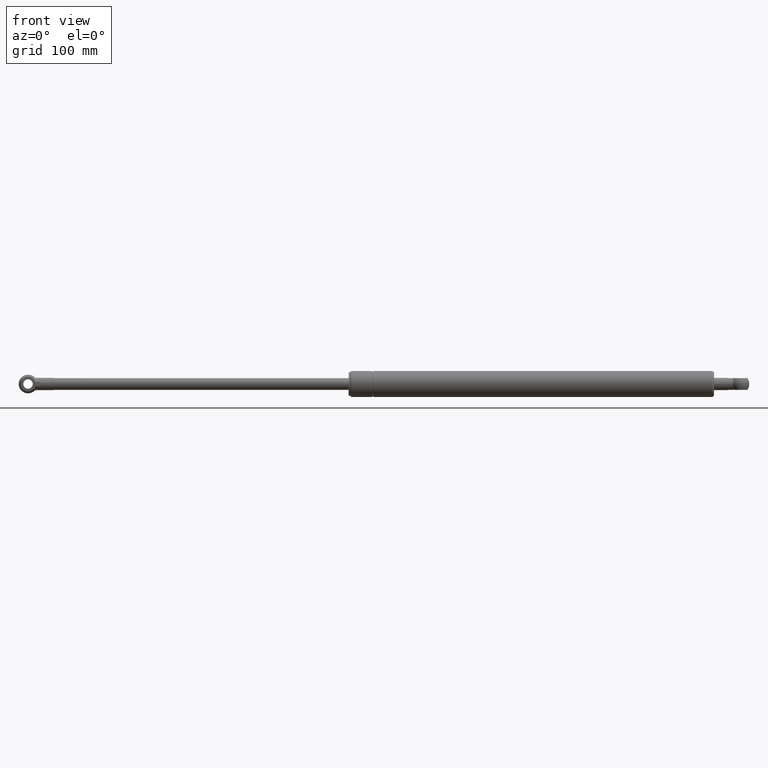
[diagram: clean part render]
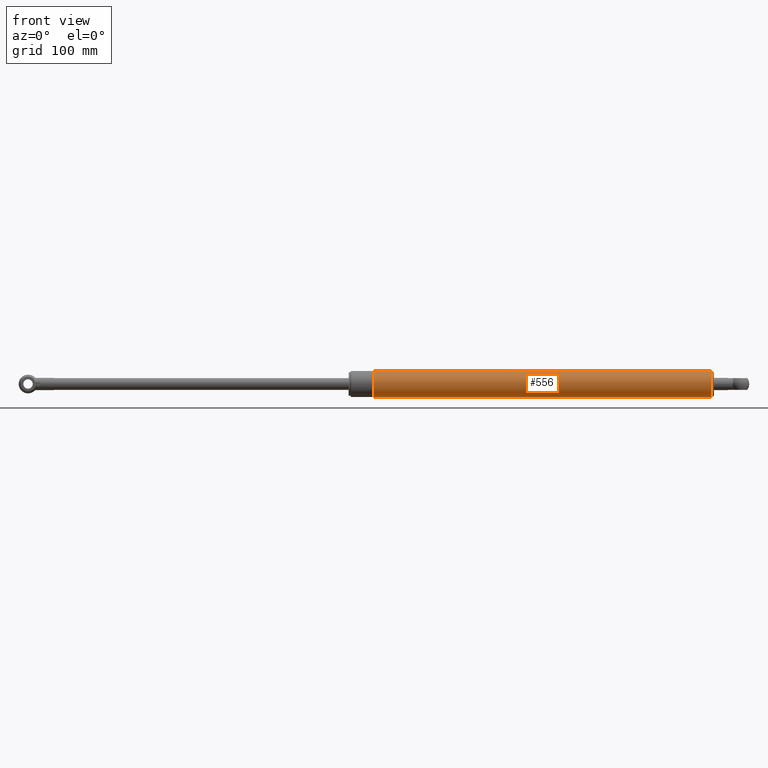
[diagram: same view with one face highlighted and labeled with its STEP entity id]
A machine part, front view. The second image highlights one B-rep face of the part: STEP entity #556.
In plain terms, the highlighted cylindrical surface (bore or boss wall) has radius 11 mm, axis along (1, 0, -0).
Its self-contained STEP definition (entity closure, byte-faithful):
#67=CYLINDRICAL_SURFACE('',#625,11.);
#97=FACE_BOUND('',#196,.T.);
#135=FACE_OUTER_BOUND('',#195,.T.);
#195=EDGE_LOOP('',(#412));
#196=EDGE_LOOP('',(#413));
#241=CIRCLE('',#588,11.);
#259=CIRCLE('',#623,11.);
#284=VERTEX_POINT('',#885);
#302=VERTEX_POINT('',#938);
#329=EDGE_CURVE('',#284,#284,#241,.T.);
#347=EDGE_CURVE('',#302,#302,#259,.T.);
#412=ORIENTED_EDGE('',*,*,#329,.T.);
#413=ORIENTED_EDGE('',*,*,#347,.F.);
#556=ADVANCED_FACE('',(#135,#97),#67,.T.);
#588=AXIS2_PLACEMENT_3D('',#886,#687,#688);
#623=AXIS2_PLACEMENT_3D('',#939,#757,#758);
#625=AXIS2_PLACEMENT_3D('',#942,#761,#762);
#687=DIRECTION('center_axis',(1.,0.,-1.20871055100319E-16));
#688=DIRECTION('ref_axis',(1.22464679914735E-16,0.,1.));
#757=DIRECTION('center_axis',(1.,0.,-1.22464679914735E-16));
#758=DIRECTION('ref_axis',(-1.26161707343768E-16,-1.22464679914735E-16,
-1.));
#761=DIRECTION('center_axis',(1.,0.,-1.22464679914735E-16));
#762=DIRECTION('ref_axis',(1.22464679914735E-16,0.,1.));
#885=CARTESIAN_POINT('',(21.,1.34711147906209E-15,-11.));
#886=CARTESIAN_POINT('Origin',(21.,0.,-2.57175827820944E-15));
#938=CARTESIAN_POINT('',(308.,0.,11.));
#939=CARTESIAN_POINT('Origin',(308.,0.,-3.77191214137385E-14));
#942=CARTESIAN_POINT('Origin',(156.,0.,-1.91044900666987E-14));